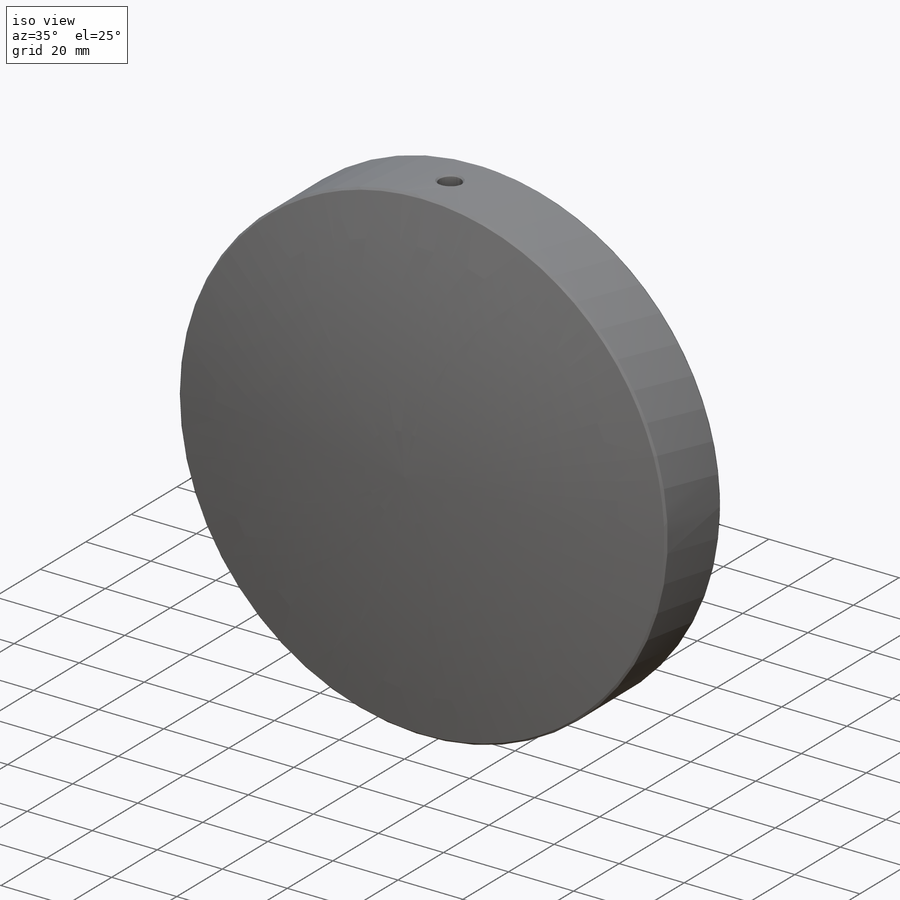
[diagram: iso view]
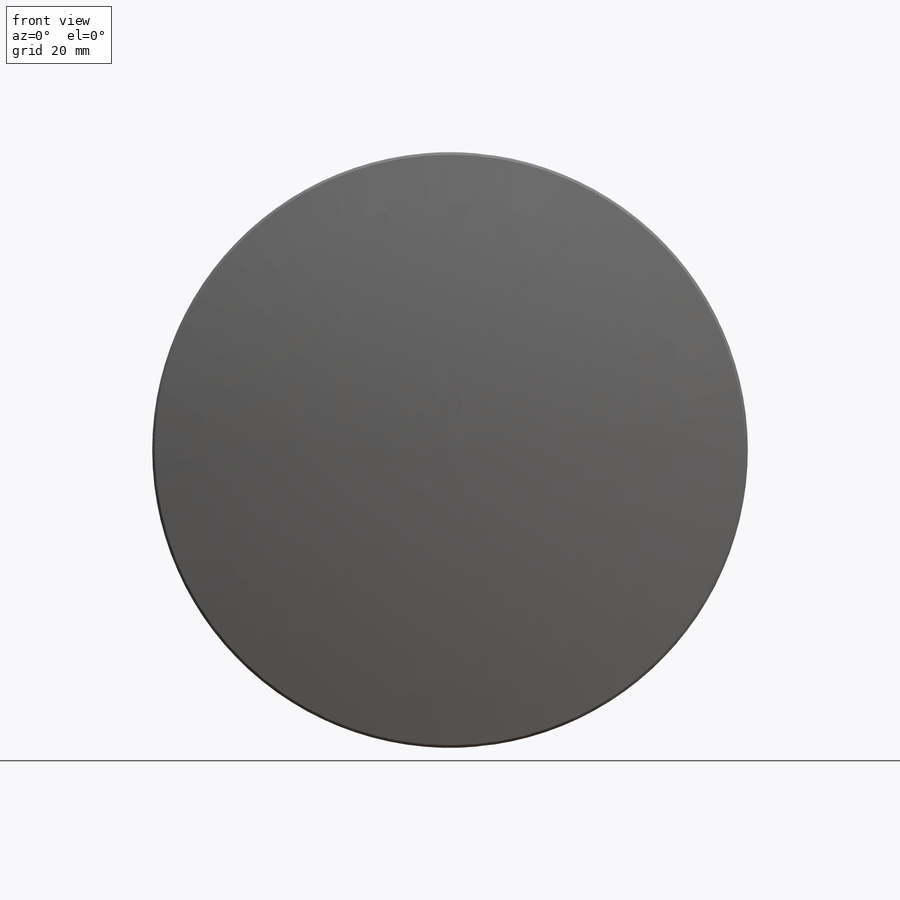
[diagram: front view]
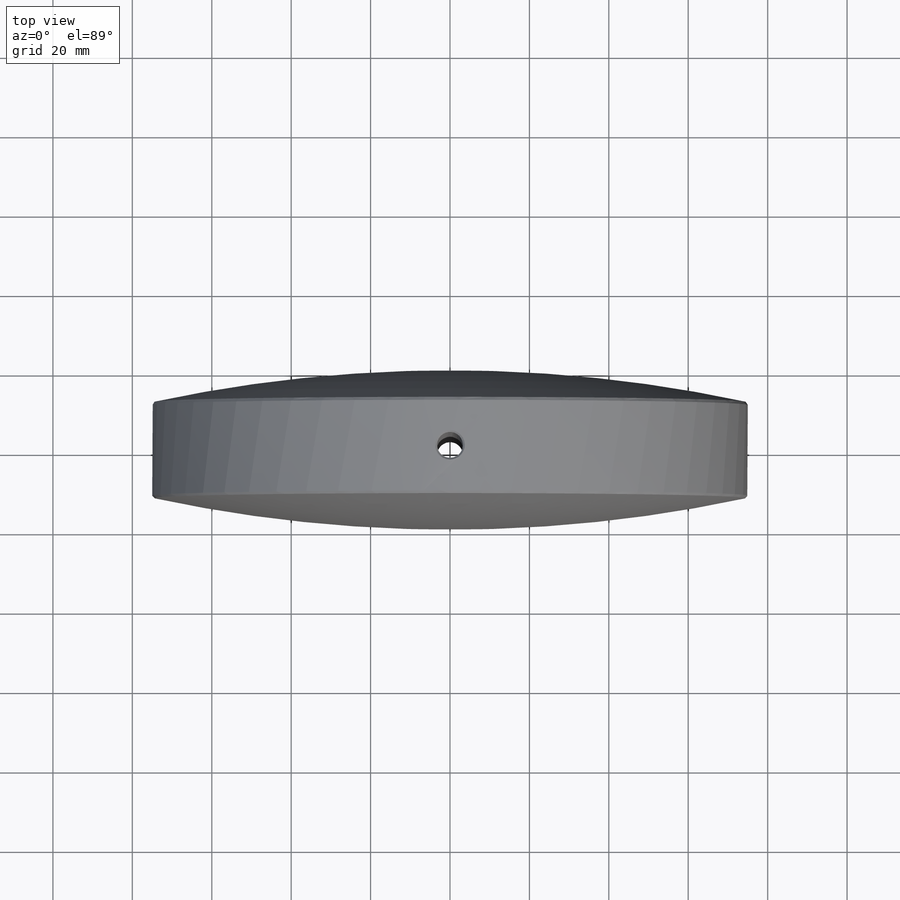
[diagram: top view]
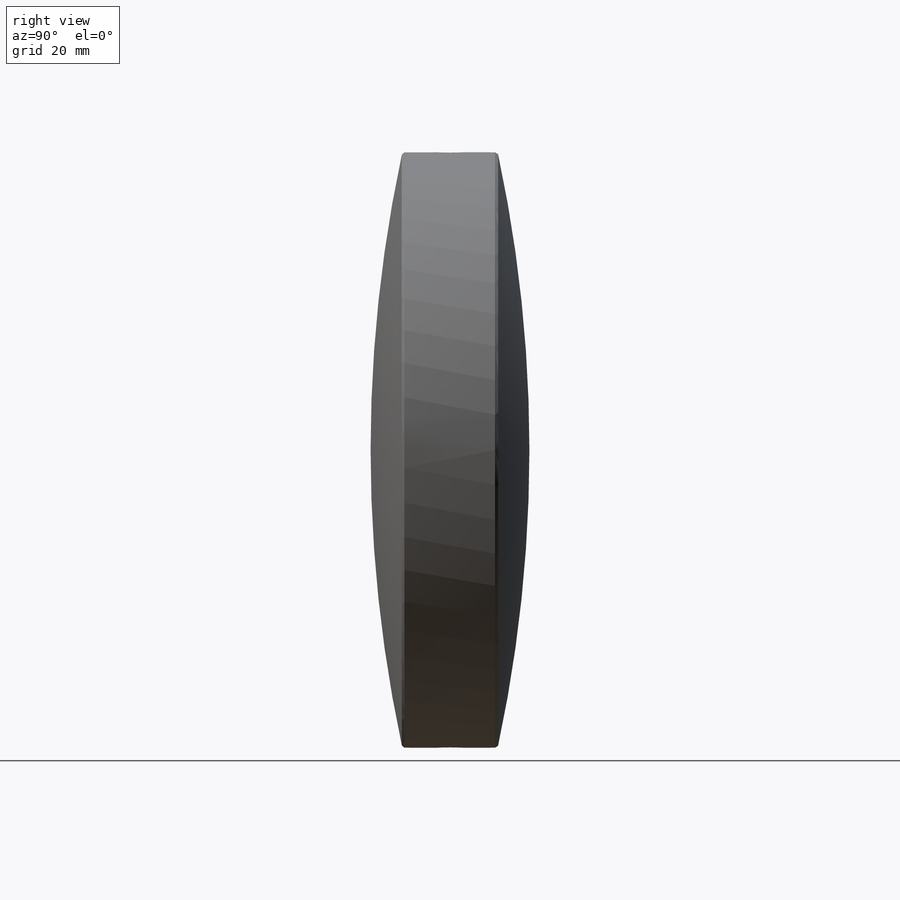
[diagram: right view]
SOLIDWORKS PART (.sldprt)
format: sldprt  version: not decoded by parser v0  size: 380,416 bytes
history: native  units: mm
features: plane x3, sketch x2, material x1, revolve x1, cut_extrude x1, chamfer x1 (+13 scaffold rows collapsed)
feature tree (22):
  scaffold x13  (default folders/planes/origin — collapsed)
  material  "Дуб"
  plane  "Спереди"
  plane  "Сверху"
  plane  "Справа"
  sketch  "Эскиз1"  dims[D1=40.0mm D2=24.0mm D3=75.0mm]
  revolve  "Повернуть1"  Angle=360deg
  sketch  "Эскиз2"  dims[D1=6.5mm]
  cut_extrude  "Вырез-Вытянуть1"  Depth=160mm
  chamfer  "Фаска1"  Distance=0.5mm Angle=45deg
decode coverage: 5 of 5 modeling features carry decoded parameters
note: suppression state not decoded; provenance and decode notes live in map.json
